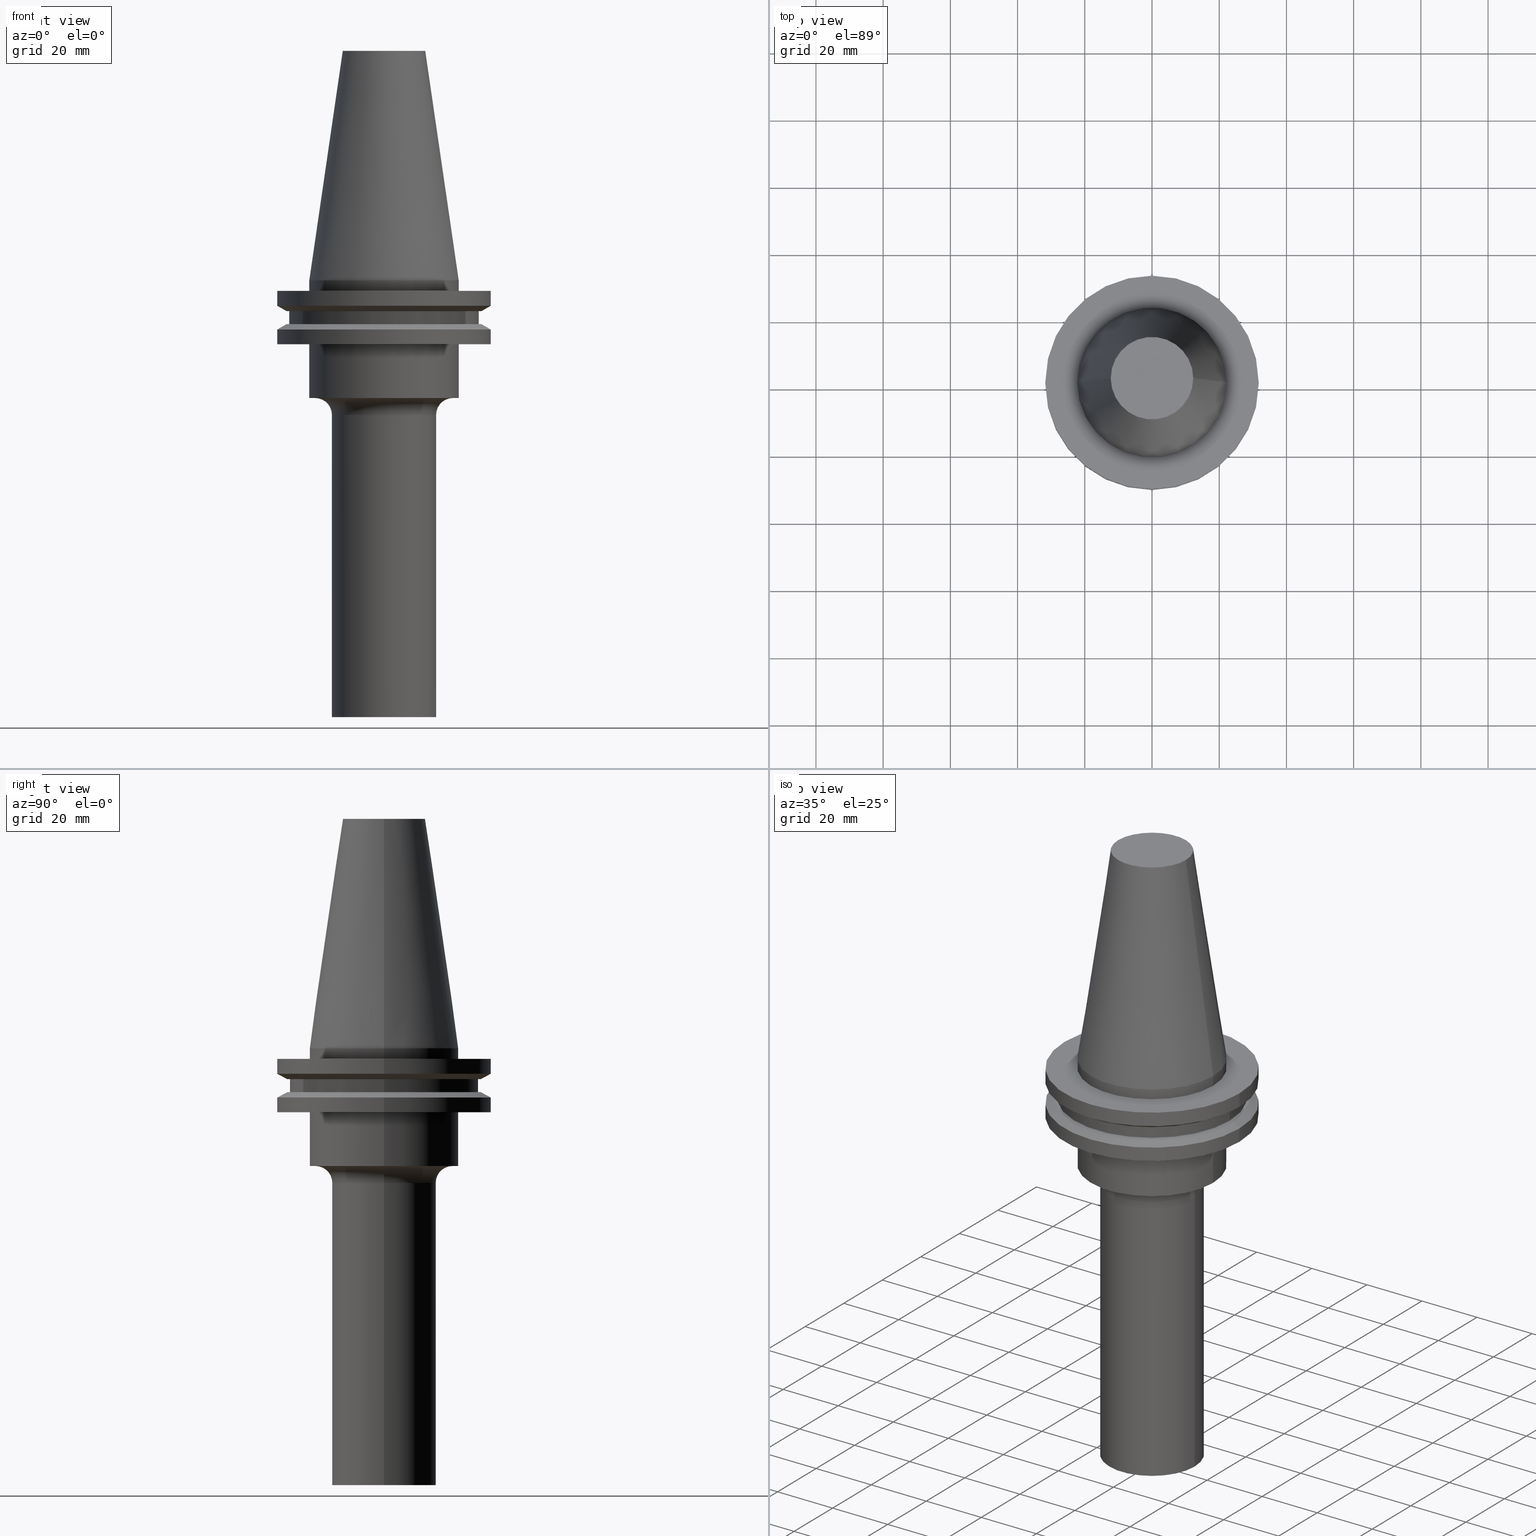
[diagram: canonical four-view strip — front | top / right | iso, engineering-drawing reading convention]
A machine part, canonical four-view strip (front | top / right | iso — engineering-drawing reading convention). The complete STEP part file that produces these views, byte-faithful:
ISO-10303-21;
HEADER;
FILE_DESCRIPTION (( 'STEP AP203' ),
    '1' );
FILE_NAME ('11_326_433.stp',
    '2022-03-07T22:03:55',
    ( '' ),
    ( '' ),
    'SwSTEP 2.0',
    'SolidWorks 2021',
    '' );
FILE_SCHEMA (( 'CONFIG_CONTROL_DESIGN' ));
ENDSEC;

DATA;
#1 = LINE ( 'NONE', #494, #178 ) ;
#2 = VERTEX_POINT ( 'NONE', #304 ) ;
#3 = EDGE_CURVE ( 'NONE', #755, #384, #55, .T. ) ;
#4 = DIRECTION ( 'NONE',  ( 1.000000000000000000, 0.000000000000000000, 0.000000000000000000 ) ) ;
#5 = APPROVAL_STATUS ( 'not_yet_approved' ) ;
#6 = CIRCLE ( 'NONE', #303, 15.50000000000000000 ) ;
#7 = EDGE_CURVE ( 'NONE', #359, #460, #430, .T. ) ;
#8 = ADVANCED_FACE ( 'NONE', ( #312 ), #9, .T. ) ;
#9 = CYLINDRICAL_SURFACE ( 'NONE', #247, 31.75000000000000000 ) ;
#10 = ORIENTED_EDGE ( 'NONE', *, *, #46, .F. ) ;
#11 = CARTESIAN_POINT ( 'NONE',  ( 0.000000000000000000, 31.75000000000000000, -3.174999999999993605 ) ) ;
#12 = DIRECTION ( 'NONE',  ( 1.000000000000000000, 0.000000000000000000, 0.000000000000000000 ) ) ;
#13 = DIRECTION ( 'NONE',  ( -0.000000000000000000, -0.000000000000000000, 1.000000000000000000 ) ) ;
#14 = ORIENTED_EDGE ( 'NONE', *, *, #737, .T. ) ;
#15 = DIRECTION ( 'NONE',  ( 1.000000000000000000, 0.000000000000000000, 0.000000000000000000 ) ) ;
#16 = DIRECTION ( 'NONE',  ( 1.000000000000000000, 0.000000000000000000, 0.000000000000000000 ) ) ;
#17 = EDGE_CURVE ( 'NONE', #462, #533, #540, .T. ) ;
#18 = AXIS2_PLACEMENT_3D ( 'NONE', #549, #436, #145 ) ;
#19 = DIRECTION ( 'NONE',  ( 0.8660254037844387076, 1.060575238724906915E-16, -0.4999999999999998890 ) ) ;
#20 = AXIS2_PLACEMENT_3D ( 'NONE', #672, #251, #150 ) ;
#21 = LINE ( 'NONE', #740, #236 ) ;
#22 = LINE ( 'NONE', #265, #345 ) ;
#23 = CYLINDRICAL_SURFACE ( 'NONE', #341, 15.50000000000000000 ) ;
#24 = DIRECTION ( 'NONE',  ( -0.000000000000000000, -0.000000000000000000, 1.000000000000000000 ) ) ;
#25 = DIRECTION ( 'NONE',  ( 0.000000000000000000, 0.000000000000000000, -1.000000000000000000 ) ) ;
#26 = FACE_OUTER_BOUND ( 'NONE', #516, .T. ) ;
#27 = CARTESIAN_POINT ( 'NONE',  ( -31.75000000000000000, 3.888253587292846476E-15, 68.25000000000000000 ) ) ;
#28 = ORIENTED_EDGE ( 'NONE', *, *, #737, .F. ) ;
#29 = CARTESIAN_POINT ( 'NONE',  ( 15.50000000000000000, 0.000000000000000000, 0.000000000000000000 ) ) ;
#30 = FACE_OUTER_BOUND ( 'NONE', #273, .T. ) ;
#31 = FACE_BOUND ( 'NONE', #767, .T. ) ;
#32 = CIRCLE ( 'NONE', #570, 31.75000000000000000 ) ;
#33 = ORIENTED_EDGE ( 'NONE', *, *, #370, .T. ) ;
#34 = FACE_OUTER_BOUND ( 'NONE', #763, .T. ) ;
#35 = EDGE_CURVE ( 'NONE', #529, #124, #750, .T. ) ;
#36 = CIRCLE ( 'NONE', #471, 20.50000000000000000 ) ;
#37 = CARTESIAN_POINT ( 'NONE',  ( 0.000000000000000000, 0.000000000000000000, 0.000000000000000000 ) ) ;
#38 = EDGE_CURVE ( 'NONE', #159, #600, #411, .T. ) ;
#39 = AXIS2_PLACEMENT_3D ( 'NONE', #307, #13, #534 ) ;
#40 = VERTEX_POINT ( 'NONE', #196 ) ;
#41 = PERSON_AND_ORGANIZATION ( #135, #174 ) ;
#42 = DIRECTION ( 'NONE',  ( -1.000000000000000000, 0.000000000000000000, -0.000000000000000000 ) ) ;
#43 = ORIENTED_EDGE ( 'NONE', *, *, #766, .F. ) ;
#44 = VERTEX_POINT ( 'NONE', #66 ) ;
#45 = AXIS2_PLACEMENT_3D ( 'NONE', #337, #277, #700 ) ;
#46 = EDGE_CURVE ( 'NONE', #308, #701, #198, .T. ) ;
#47 = APPROVAL_DATE_TIME ( #580, #169 ) ;
#48 = CLOSED_SHELL ( 'NONE', ( #64, #567, #354, #371, #419, #611, #739, #217, #598, #723, #54, #551, #536, #698, #482, #93, #199, #330, #244, #626, #113, #8, #186, #530, #667, #155, #339 ) ) ;
#49 = ORIENTED_EDGE ( 'NONE', *, *, #348, .F. ) ;
#50 = ORIENTED_EDGE ( 'NONE', *, *, #234, .T. ) ;
#51 = DIRECTION ( 'NONE',  ( -0.000000000000000000, -0.000000000000000000, 1.000000000000000000 ) ) ;
#52 = ORIENTED_EDGE ( 'NONE', *, *, #114, .T. ) ;
#53 = CARTESIAN_POINT ( 'NONE',  ( -22.22500000000000142, 2.721777511104992849E-15, 68.25000000000000000 ) ) ;
#54 = ADVANCED_FACE ( 'NONE', ( #85 ), #772, .T. ) ;
#55 = CIRCLE ( 'NONE', #584, 31.75000000000000000 ) ;
#56 = ORIENTED_EDGE ( 'NONE', *, *, #295, .T. ) ;
#57 = EDGE_CURVE ( 'NONE', #583, #170, #164, .T. ) ;
#58 = CARTESIAN_POINT ( 'NONE',  ( 0.000000000000000000, 0.000000000000000000, -19.04999999999999716 ) ) ;
#59 = CIRCLE ( 'NONE', #433, 22.22500000000000142 ) ;
#60 = EDGE_LOOP ( 'NONE', ( #496, #434, #121, #10 ) ) ;
#61 = ADVANCED_BREP_SHAPE_REPRESENTATION ( '11_326_433', ( #406, #719 ), #481 ) ;
#62 = APPROVAL_DATE_TIME ( #69, #87 ) ;
#63 = EDGE_LOOP ( 'NONE', ( #405, #353, #543, #535 ) ) ;
#64 = ADVANCED_FACE ( 'NONE', ( #669 ), #302, .F. ) ;
#65 = AXIS2_PLACEMENT_3D ( 'NONE', #340, #622, #392 ) ;
#66 = CARTESIAN_POINT ( 'NONE',  ( 31.74999999999999289, 0.000000000000000000, -19.04999999999999716 ) ) ;
#67 = AXIS2_PLACEMENT_3D ( 'NONE', #203, #431, #248 ) ;
#68 = CIRCLE ( 'NONE', #495, 31.74999999999999289 ) ;
#69 = DATE_AND_TIME ( #602, #228 ) ;
#70 = DIRECTION ( 'NONE',  ( -0.000000000000000000, -0.000000000000000000, 1.000000000000000000 ) ) ;
#71 = FACE_OUTER_BOUND ( 'NONE', #644, .T. ) ;
#72 = DIRECTION ( 'NONE',  ( 1.000000000000000000, 0.000000000000000000, 0.000000000000000000 ) ) ;
#73 =( NAMED_UNIT ( * ) SI_UNIT ( $, .STERADIAN. ) SOLID_ANGLE_UNIT ( ) );
#74 = DIRECTION ( 'NONE',  ( 1.000000000000000000, 0.000000000000000000, 0.000000000000000000 ) ) ;
#75 = CC_DESIGN_PERSON_AND_ORGANIZATION_ASSIGNMENT ( #311, #368, ( #635 ) ) ;
#76 = DIRECTION ( 'NONE',  ( 1.000000000000000000, 0.000000000000000000, 0.000000000000000000 ) ) ;
#77 = EDGE_LOOP ( 'NONE', ( #224, #655, #50, #222 ) ) ;
#78 = DIRECTION ( 'NONE',  ( -0.000000000000000000, -0.000000000000000000, 1.000000000000000000 ) ) ;
#79 = PLANE ( 'NONE',  #581 ) ;
#80 = DIRECTION ( 'NONE',  ( -1.000000000000000000, 1.224646799147352714E-16, 0.000000000000000000 ) ) ;
#81 = DIRECTION ( 'NONE',  ( 1.000000000000000000, 0.000000000000000000, 0.000000000000000000 ) ) ;
#82 = CONICAL_SURFACE ( 'NONE', #465, 22.22500000000000142, 0.1448138465474119174 ) ;
#83 = ORIENTED_EDGE ( 'NONE', *, *, #510, .T. ) ;
#84 = DIRECTION ( 'NONE',  ( -0.1443082272672999711, 0.000000000000000000, -0.9895327864921755756 ) ) ;
#85 = FACE_OUTER_BOUND ( 'NONE', #149, .T. ) ;
#86 = DIRECTION ( 'NONE',  ( -0.000000000000000000, -0.000000000000000000, 1.000000000000000000 ) ) ;
#87 = APPROVAL ( #5, 'UNSPECIFIED' ) ;
#88 = EDGE_CURVE ( 'NONE', #417, #343, #595, .T. ) ;
#89 = LINE ( 'NONE', #442, #200 ) ;
#90 = DIRECTION ( 'NONE',  ( -0.000000000000000000, -0.000000000000000000, 1.000000000000000000 ) ) ;
#91 = CYLINDRICAL_SURFACE ( 'NONE', #45, 28.17999999999999972 ) ;
#92 = ORIENTED_EDGE ( 'NONE', *, *, #425, .F. ) ;
#93 = ADVANCED_FACE ( 'NONE', ( #722 ), #127, .T. ) ;
#94 = CARTESIAN_POINT ( 'NONE',  ( 0.000000000000000000, 0.000000000000000000, -35.04999999999999716 ) ) ;
#95 = EDGE_CURVE ( 'NONE', #410, #552, #470, .T. ) ;
#96 = LINE ( 'NONE', #439, #663 ) ;
#97 = EDGE_LOOP ( 'NONE', ( #83, #748 ) ) ;
#98 = APPLICATION_PROTOCOL_DEFINITION ( 'international standard', 'config_control_design', 1994, #661 ) ;
#99 = CIRCLE ( 'NONE', #585, 28.17999999999999972 ) ;
#100 = CARTESIAN_POINT ( 'NONE',  ( 0.000000000000000000, 0.000000000000000000, -19.04999999999999716 ) ) ;
#101 = AXIS2_PLACEMENT_3D ( 'NONE', #317, #185, #260 ) ;
#102 = ORIENTED_EDGE ( 'NONE', *, *, #682, .F. ) ;
#103 = FACE_OUTER_BOUND ( 'NONE', #773, .T. ) ;
#104 = ORIENTED_EDGE ( 'NONE', *, *, #181, .F. ) ;
#105 = EDGE_CURVE ( 'NONE', #460, #359, #702, .T. ) ;
#106 = APPROVAL_STATUS ( 'not_yet_approved' ) ;
#107 = ORIENTED_EDGE ( 'NONE', *, *, #425, .T. ) ;
#108 = AXIS2_PLACEMENT_3D ( 'NONE', #275, #332, #220 ) ;
#109 = VERTEX_POINT ( 'NONE', #545 ) ;
#110 = CARTESIAN_POINT ( 'NONE',  ( 22.22500000000000142, 2.721777511104992849E-15, 0.000000000000000000 ) ) ;
#111 = ORIENTED_EDGE ( 'NONE', *, *, #596, .F. ) ;
#112 = CARTESIAN_POINT ( 'NONE',  ( 22.22500000000000142, 0.000000000000000000, -3.174999999999997158 ) ) ;
#113 = ADVANCED_FACE ( 'NONE', ( #556 ), #313, .T. ) ;
#114 = EDGE_CURVE ( 'NONE', #755, #692, #22, .T. ) ;
#115 = ORIENTED_EDGE ( 'NONE', *, *, #527, .T. ) ;
#116 = DIRECTION ( 'NONE',  ( 1.000000000000000000, 0.000000000000000000, 0.000000000000000000 ) ) ;
#117 = EDGE_LOOP ( 'NONE', ( #293, #184, #466, #710 ) ) ;
#118 = VECTOR ( 'NONE', #24, 1000.000000000000000 ) ;
#119 = DIRECTION ( 'NONE',  ( -0.000000000000000000, -0.000000000000000000, 1.000000000000000000 ) ) ;
#120 = SECURITY_CLASSIFICATION_LEVEL ( 'unclassified' ) ;
#121 = ORIENTED_EDGE ( 'NONE', *, *, #348, .T. ) ;
#122 = EDGE_CURVE ( 'NONE', #758, #2, #151, .T. ) ;
#123 = CARTESIAN_POINT ( 'NONE',  ( 0.000000000000000000, 0.000000000000000000, -9.205000000000005400 ) ) ;
#124 = VERTEX_POINT ( 'NONE', #486 ) ;
#125 = VECTOR ( 'NONE', #617, 1000.000000000000000 ) ;
#126 = CIRCLE ( 'NONE', #65, 12.27178102086201150 ) ;
#127 = CYLINDRICAL_SURFACE ( 'NONE', #541, 31.75000000000000000 ) ;
#128 = AXIS2_PLACEMENT_3D ( 'NONE', #435, #156, #547 ) ;
#129 = FACE_OUTER_BOUND ( 'NONE', #142, .T. ) ;
#130 = AXIS2_PLACEMENT_3D ( 'NONE', #183, #531, #358 ) ;
#131 =( NAMED_UNIT ( * ) PLANE_ANGLE_UNIT ( ) SI_UNIT ( $, .RADIAN. ) );
#132 = DIRECTION ( 'NONE',  ( -0.000000000000000000, -0.000000000000000000, 1.000000000000000000 ) ) ;
#133 = FACE_OUTER_BOUND ( 'NONE', #519, .T. ) ;
#134 = VERTEX_POINT ( 'NONE', #623 ) ;
#135 = PERSON ( 'UNSPECIFIED', 'UNSPECIFIED', 'UNSPECIFIED', ('UNSPECIFIED'), ('UNSPECIFIED'), ('UNSPECIFIED') ) ;
#136 = CARTESIAN_POINT ( 'NONE',  ( 0.000000000000000000, 0.000000000000000000, -14.65472339340266572 ) ) ;
#137 = APPROVAL ( #106, 'UNSPECIFIED' ) ;
#138 = DIRECTION ( 'NONE',  ( -0.000000000000000000, -0.000000000000000000, 1.000000000000000000 ) ) ;
#139 = EDGE_CURVE ( 'NONE', #701, #124, #6, .T. ) ;
#140 = DIRECTION ( 'NONE',  ( -0.000000000000000000, -0.000000000000000000, 1.000000000000000000 ) ) ;
#141 = FACE_OUTER_BOUND ( 'NONE', #177, .T. ) ;
#142 = EDGE_LOOP ( 'NONE', ( #736, #279, #227, #390 ) ) ;
#143 = DIRECTION ( 'NONE',  ( -0.000000000000000000, -0.000000000000000000, 1.000000000000000000 ) ) ;
#144 = CARTESIAN_POINT ( 'NONE',  ( 0.000000000000000000, 0.000000000000000000, -9.205000000000005400 ) ) ;
#145 = DIRECTION ( 'NONE',  ( 1.000000000000000000, 0.000000000000000000, 0.000000000000000000 ) ) ;
#146 = EDGE_CURVE ( 'NONE', #308, #529, #752, .T. ) ;
#147 = FACE_BOUND ( 'NONE', #97, .T. ) ;
#148 = AXIS2_PLACEMENT_3D ( 'NONE', #144, #90, #568 ) ;
#149 = EDGE_LOOP ( 'NONE', ( #310, #367, #639, #704 ) ) ;
#150 = DIRECTION ( 'NONE',  ( 1.000000000000000000, 0.000000000000000000, 0.000000000000000000 ) ) ;
#151 = CIRCLE ( 'NONE', #754, 28.97919780457008088 ) ;
#152 = CARTESIAN_POINT ( 'NONE',  ( 0.000000000000000000, 0.000000000000000000, -14.65472339340266572 ) ) ;
#153 = DIRECTION ( 'NONE',  ( 1.000000000000000000, 0.000000000000000000, 0.000000000000000000 ) ) ;
#154 = ORIENTED_EDGE ( 'NONE', *, *, #422, .T. ) ;
#155 = ADVANCED_FACE ( 'NONE', ( #26 ), #271, .T. ) ;
#156 = DIRECTION ( 'NONE',  ( -0.000000000000000000, -0.000000000000000000, 1.000000000000000000 ) ) ;
#157 = DIRECTION ( 'NONE',  ( -1.000000000000000000, 0.000000000000000000, 0.000000000000000000 ) ) ;
#158 = FACE_OUTER_BOUND ( 'NONE', #402, .T. ) ;
#159 = VERTEX_POINT ( 'NONE', #616 ) ;
#160 = CARTESIAN_POINT ( 'NONE',  ( 0.000000000000000000, 0.000000000000000000, 0.000000000000000000 ) ) ;
#161 = CARTESIAN_POINT ( 'NONE',  ( -22.22500000000000142, 2.721777511104992849E-15, -19.04999999999999716 ) ) ;
#162 = ORIENTED_EDGE ( 'NONE', *, *, #7, .T. ) ;
#163 = AXIS2_PLACEMENT_3D ( 'NONE', #213, #207, #270 ) ;
#164 = CIRCLE ( 'NONE', #344, 22.22500000000000142 ) ;
#165 = DIRECTION ( 'NONE',  ( 1.000000000000000000, 0.000000000000000000, 0.000000000000000000 ) ) ;
#166 = EDGE_CURVE ( 'NONE', #343, #417, #99, .T. ) ;
#167 = CARTESIAN_POINT ( 'NONE',  ( 28.97919780457007732, 0.000000000000000000, -9.205000000000005400 ) ) ;
#168 = ORIENTED_EDGE ( 'NONE', *, *, #475, .F. ) ;
#169 = APPROVAL ( #765, 'UNSPECIFIED' ) ;
#170 = VERTEX_POINT ( 'NONE', #206 ) ;
#171 = DIRECTION ( 'NONE',  ( 0.000000000000000000, 0.000000000000000000, 1.000000000000000000 ) ) ;
#172 = ORIENTED_EDGE ( 'NONE', *, *, #517, .T. ) ;
#173 = AXIS2_PLACEMENT_3D ( 'NONE', #681, #284, #382 ) ;
#174 = ORGANIZATION ( 'UNSPECIFIED', 'UNSPECIFIED', '' ) ;
#175 = PERSON_AND_ORGANIZATION_ROLE ( 'creator' ) ;
#176 = AXIS2_PLACEMENT_3D ( 'NONE', #333, #250, #16 ) ;
#177 = EDGE_LOOP ( 'NONE', ( #559, #351, #205, #514 ) ) ;
#178 = VECTOR ( 'NONE', #614, 1000.000000000000000 ) ;
#179 = EDGE_CURVE ( 'NONE', #2, #394, #89, .T. ) ;
#180 = CARTESIAN_POINT ( 'NONE',  ( 0.000000000000000000, 0.000000000000000000, -3.174999999999997158 ) ) ;
#181 = EDGE_CURVE ( 'NONE', #134, #701, #201, .T. ) ;
#182 = EDGE_LOOP ( 'NONE', ( #695, #538, #242, #606 ) ) ;
#183 = CARTESIAN_POINT ( 'NONE',  ( 0.000000000000000000, 0.000000000000000000, -9.205000000000005400 ) ) ;
#184 = ORIENTED_EDGE ( 'NONE', *, *, #202, .T. ) ;
#185 = DIRECTION ( 'NONE',  ( -0.000000000000000000, -0.000000000000000000, 1.000000000000000000 ) ) ;
#186 = ADVANCED_FACE ( 'NONE', ( #212, #665 ), #738, .F. ) ;
#187 = EDGE_LOOP ( 'NONE', ( #729, #329, #634, #511 ) ) ;
#188 = VECTOR ( 'NONE', #143, 1000.000000000000000 ) ;
#189 = DATE_AND_TIME ( #659, #709 ) ;
#190 = DIRECTION ( 'NONE',  ( 1.000000000000000000, 0.000000000000000000, 0.000000000000000000 ) ) ;
#191 = DIRECTION ( 'NONE',  ( 1.000000000000000000, 0.000000000000000000, 0.000000000000000000 ) ) ;
#192 = EDGE_CURVE ( 'NONE', #44, #394, #379, .T. ) ;
#193 = CARTESIAN_POINT ( 'NONE',  ( -15.50000000000000000, 1.898202538678397557E-15, -130.0000000000000000 ) ) ;
#194 = CIRCLE ( 'NONE', #464, 12.27178102086201150 ) ;
#195 = PRODUCT_DEFINITION_FORMATION_WITH_SPECIFIED_SOURCE ( 'ANY', '', #705, .NOT_KNOWN. ) ;
#196 = CARTESIAN_POINT ( 'NONE',  ( 12.27178102086201150, 2.112318622904291439E-15, 68.25000000000000000 ) ) ;
#197 = LINE ( 'NONE', #53, #281 ) ;
#198 = CIRCLE ( 'NONE', #67, 4.999999999999997335 ) ;
#199 = ADVANCED_FACE ( 'NONE', ( #219 ), #649, .T. ) ;
#200 = VECTOR ( 'NONE', #19, 1000.000000000000000 ) ;
#201 = LINE ( 'NONE', #29, #413 ) ;
#202 = EDGE_CURVE ( 'NONE', #109, #44, #68, .T. ) ;
#203 = CARTESIAN_POINT ( 'NONE',  ( 20.50000000000000000, 0.000000000000000000, -40.04999999999999716 ) ) ;
#204 = CYLINDRICAL_SURFACE ( 'NONE', #305, 31.75000000000000000 ) ;
#205 = ORIENTED_EDGE ( 'NONE', *, *, #510, .F. ) ;
#206 = CARTESIAN_POINT ( 'NONE',  ( 22.22500000000000142, 0.000000000000000000, -19.04999999999999716 ) ) ;
#207 = DIRECTION ( 'NONE',  ( -0.000000000000000000, -0.000000000000000000, 1.000000000000000000 ) ) ;
#208 = DIRECTION ( 'NONE',  ( 0.000000000000000000, 0.000000000000000000, -1.000000000000000000 ) ) ;
#209 = CARTESIAN_POINT ( 'NONE',  ( 0.000000000000000000, 31.74999999999999289, -19.04999999999999716 ) ) ;
#210 = UNCERTAINTY_MEASURE_WITH_UNIT (LENGTH_MEASURE( 1.000000000000000082E-05 ), #571, 'distance_accuracy_value', 'NONE');
#211 = ORIENTED_EDGE ( 'NONE', *, *, #269, .T. ) ;
#212 = FACE_BOUND ( 'NONE', #664, .T. ) ;
#213 = CARTESIAN_POINT ( 'NONE',  ( 0.000000000000000000, 0.000000000000000000, -130.0000000000000000 ) ) ;
#214 = DIRECTION ( 'NONE',  ( 1.000000000000000000, 0.000000000000000000, 0.000000000000000000 ) ) ;
#215 = CARTESIAN_POINT ( 'NONE',  ( 0.000000000000000000, 12.27178102086201150, 68.25000000000000000 ) ) ;
#216 = LOCAL_TIME ( 16, 3, 55.00000000000000000, #768 ) ;
#217 = ADVANCED_FACE ( 'NONE', ( #129 ), #438, .T. ) ;
#218 = EDGE_LOOP ( 'NONE', ( #357, #688, #52, #653 ) ) ;
#219 = FACE_OUTER_BOUND ( 'NONE', #409, .T. ) ;
#220 = DIRECTION ( 'NONE',  ( 1.000000000000000000, 0.000000000000000000, 0.000000000000000000 ) ) ;
#221 = CARTESIAN_POINT ( 'NONE',  ( -22.22500000000000142, 2.721777511104992849E-15, -3.174999999999997158 ) ) ;
#222 = ORIENTED_EDGE ( 'NONE', *, *, #707, .F. ) ;
#223 = CARTESIAN_POINT ( 'NONE',  ( 0.000000000000000000, 0.000000000000000000, -13.05499999999999794 ) ) ;
#224 = ORIENTED_EDGE ( 'NONE', *, *, #399, .F. ) ;
#225 = PERSON_AND_ORGANIZATION ( #135, #174 ) ;
#226 = CARTESIAN_POINT ( 'NONE',  ( -15.50000000000000000, 1.898202538678397557E-15, 0.000000000000000000 ) ) ;
#227 = ORIENTED_EDGE ( 'NONE', *, *, #315, .F. ) ;
#228 = LOCAL_TIME ( 16, 3, 55.00000000000000000, #771 ) ;
#229 = AXIS2_PLACEMENT_3D ( 'NONE', #322, #651, #550 ) ;
#230 = EDGE_LOOP ( 'NONE', ( #92, #453, #615, #111 ) ) ;
#231 = ORIENTED_EDGE ( 'NONE', *, *, #202, .F. ) ;
#232 = EDGE_CURVE ( 'NONE', #625, #394, #280, .T. ) ;
#233 = EDGE_LOOP ( 'NONE', ( #420, #676, #505, #102 ) ) ;
#234 = EDGE_CURVE ( 'NONE', #462, #159, #485, .T. ) ;
#235 = DIRECTION ( 'NONE',  ( -0.000000000000000000, -0.000000000000000000, 1.000000000000000000 ) ) ;
#236 = VECTOR ( 'NONE', #686, 1000.000000000000000 ) ;
#237 = PERSON_AND_ORGANIZATION_ROLE ( 'design_supplier' ) ;
#238 = AXIS2_PLACEMENT_3D ( 'NONE', #501, #319, #15 ) ;
#239 = EDGE_LOOP ( 'NONE', ( #115, #645 ) ) ;
#240 = CONICAL_SURFACE ( 'NONE', #130, 28.97919780457007732, 1.047197551196598297 ) ;
#241 = CARTESIAN_POINT ( 'NONE',  ( 0.000000000000000000, 0.000000000000000000, -3.174999999999997158 ) ) ;
#242 = ORIENTED_EDGE ( 'NONE', *, *, #46, .T. ) ;
#243 = DIRECTION ( 'NONE',  ( -0.000000000000000000, -0.000000000000000000, 1.000000000000000000 ) ) ;
#244 = ADVANCED_FACE ( 'NONE', ( #726 ), #375, .T. ) ;
#245 = VERTEX_POINT ( 'NONE', #621 ) ;
#246 = APPROVAL_PERSON_ORGANIZATION ( #407, #169, #461 ) ;
#247 = AXIS2_PLACEMENT_3D ( 'NONE', #741, #140, #724 ) ;
#248 = DIRECTION ( 'NONE',  ( 0.000000000000000000, 0.000000000000000000, -1.000000000000000000 ) ) ;
#249 = VECTOR ( 'NONE', #631, 1000.000000000000000 ) ;
#250 = DIRECTION ( 'NONE',  ( -0.000000000000000000, -0.000000000000000000, 1.000000000000000000 ) ) ;
#251 = DIRECTION ( 'NONE',  ( -0.000000000000000000, -0.000000000000000000, 1.000000000000000000 ) ) ;
#252 = DIRECTION ( 'NONE',  ( 1.000000000000000000, 0.000000000000000000, 0.000000000000000000 ) ) ;
#253 = DIRECTION ( 'NONE',  ( 1.000000000000000000, 0.000000000000000000, 0.000000000000000000 ) ) ;
#254 = EDGE_CURVE ( 'NONE', #777, #600, #391, .T. ) ;
#255 = ORIENTED_EDGE ( 'NONE', *, *, #451, .F. ) ;
#256 = CARTESIAN_POINT ( 'NONE',  ( 0.000000000000000000, 0.000000000000000000, 68.25000000000000000 ) ) ;
#257 = AXIS2_PLACEMENT_3D ( 'NONE', #401, #500, #675 ) ;
#258 = CARTESIAN_POINT ( 'NONE',  ( -28.97919780457008088, 0.000000000000000000, -13.05499999999999794 ) ) ;
#259 = DIRECTION ( 'NONE',  ( 1.000000000000000000, 0.000000000000000000, 0.000000000000000000 ) ) ;
#260 = DIRECTION ( 'NONE',  ( 1.000000000000000000, 0.000000000000000000, 0.000000000000000000 ) ) ;
#261 = ORIENTED_EDGE ( 'NONE', *, *, #399, .T. ) ;
#262 = AXIS2_PLACEMENT_3D ( 'NONE', #746, #78, #689 ) ;
#263 = DIRECTION ( 'NONE',  ( -1.000000000000000000, 0.000000000000000000, 0.000000000000000000 ) ) ;
#264 = CARTESIAN_POINT ( 'NONE',  ( 15.50000000000000000, 0.000000000000000000, -40.04999999999999005 ) ) ;
#265 = CARTESIAN_POINT ( 'NONE',  ( 31.75000000000000000, 0.000000000000000000, 68.25000000000000000 ) ) ;
#266 = CARTESIAN_POINT ( 'NONE',  ( 0.000000000000000000, 0.000000000000000000, 68.25000000000000000 ) ) ;
#267 = ORIENTED_EDGE ( 'NONE', *, *, #588, .F. ) ;
#268 = CARTESIAN_POINT ( 'NONE',  ( 20.50000000000000000, 0.000000000000000000, -35.04999999999999716 ) ) ;
#269 = EDGE_CURVE ( 'NONE', #134, #285, #764, .T. ) ;
#270 = DIRECTION ( 'NONE',  ( 1.000000000000000000, 0.000000000000000000, 0.000000000000000000 ) ) ;
#271 = CYLINDRICAL_SURFACE ( 'NONE', #262, 15.50000000000000000 ) ;
#272 = DIRECTION ( 'NONE',  ( 1.000000000000000000, 0.000000000000000000, 0.000000000000000000 ) ) ;
#273 = EDGE_LOOP ( 'NONE', ( #569, #162, #56, #456 ) ) ;
#274 = DIRECTION ( 'NONE',  ( -0.000000000000000000, -0.000000000000000000, 1.000000000000000000 ) ) ;
#275 = CARTESIAN_POINT ( 'NONE',  ( 0.000000000000000000, 0.000000000000000000, 68.25000000000000000 ) ) ;
#276 = CIRCLE ( 'NONE', #148, 28.97919780457007732 ) ;
#277 = DIRECTION ( 'NONE',  ( -0.000000000000000000, -0.000000000000000000, 1.000000000000000000 ) ) ;
#278 = APPROVAL_PERSON_ORGANIZATION ( #454, #137, #521 ) ;
#279 = ORIENTED_EDGE ( 'NONE', *, *, #383, .T. ) ;
#280 = CIRCLE ( 'NONE', #20, 31.75000000000000000 ) ;
#281 = VECTOR ( 'NONE', #715, 1000.000000000000000 ) ;
#282 = CARTESIAN_POINT ( 'NONE',  ( -12.27178102086201150, 0.000000000000000000, 68.25000000000000000 ) ) ;
#283 = EDGE_CURVE ( 'NONE', #529, #308, #36, .T. ) ;
#284 = DIRECTION ( 'NONE',  ( -0.000000000000000000, -0.000000000000000000, 1.000000000000000000 ) ) ;
#285 = VERTEX_POINT ( 'NONE', #193 ) ;
#286 = DATE_AND_TIME ( #458, #554 ) ;
#287 = CARTESIAN_POINT ( 'NONE',  ( -31.75000000000000000, 3.888253587292846476E-15, -3.174999999999997158 ) ) ;
#288 = PRODUCT_DEFINITION ( 'UNKNOWN', '', #195, #564 ) ;
#289 = ORIENTED_EDGE ( 'NONE', *, *, #95, .T. ) ;
#290 = COORDINATED_UNIVERSAL_TIME_OFFSET ( 6, 0, .BEHIND. ) ;
#291 = ORIENTED_EDGE ( 'NONE', *, *, #95, .F. ) ;
#292 = AXIS2_PLACEMENT_3D ( 'NONE', #594, #546, #253 ) ;
#293 = ORIENTED_EDGE ( 'NONE', *, *, #383, .F. ) ;
#294 = APPROVAL_DATE_TIME ( #576, #137 ) ;
#295 = EDGE_CURVE ( 'NONE', #460, #170, #610, .T. ) ;
#296 = ORIENTED_EDGE ( 'NONE', *, *, #254, .F. ) ;
#297 = LINE ( 'NONE', #712, #641 ) ;
#298 = ORIENTED_EDGE ( 'NONE', *, *, #679, .F. ) ;
#299 = AXIS2_PLACEMENT_3D ( 'NONE', #266, #342, #509 ) ;
#300 = FACE_BOUND ( 'NONE', #761, .T. ) ;
#301 = APPROVAL_PERSON_ORGANIZATION ( #713, #87, #599 ) ;
#302 = TOROIDAL_SURFACE ( 'NONE', #730, 20.50000000000000000, 4.999999999999999112 ) ;
#303 = AXIS2_PLACEMENT_3D ( 'NONE', #369, #727, #74 ) ;
#304 = CARTESIAN_POINT ( 'NONE',  ( 28.97919780457008088, 3.718590885307660666E-15, -13.05499999999999794 ) ) ;
#305 = AXIS2_PLACEMENT_3D ( 'NONE', #474, #51, #609 ) ;
#306 = CC_DESIGN_DATE_AND_TIME_ASSIGNMENT ( #189, #366, ( #635 ) ) ;
#307 = CARTESIAN_POINT ( 'NONE',  ( 0.000000000000000000, 0.000000000000000000, 68.25000000000000000 ) ) ;
#308 = VERTEX_POINT ( 'NONE', #268 ) ;
#309 = CC_DESIGN_DATE_AND_TIME_ASSIGNMENT ( #286, #703, ( #288 ) ) ;
#310 = ORIENTED_EDGE ( 'NONE', *, *, #422, .F. ) ;
#311 = PERSON_AND_ORGANIZATION ( #135, #174 ) ;
#312 = FACE_OUTER_BOUND ( 'NONE', #218, .T. ) ;
#313 = CONICAL_SURFACE ( 'NONE', #721, 28.97919780457007732, 1.047197551196598297 ) ;
#314 = ORIENTED_EDGE ( 'NONE', *, *, #114, .F. ) ;
#315 = EDGE_CURVE ( 'NONE', #394, #625, #574, .T. ) ;
#316 = DIRECTION ( 'NONE',  ( 1.000000000000000000, 0.000000000000000000, 0.000000000000000000 ) ) ;
#317 = CARTESIAN_POINT ( 'NONE',  ( 0.000000000000000000, 0.000000000000000000, -3.174999999999997158 ) ) ;
#318 = ORIENTED_EDGE ( 'NONE', *, *, #459, .F. ) ;
#319 = DIRECTION ( 'NONE',  ( -0.000000000000000000, -0.000000000000000000, 1.000000000000000000 ) ) ;
#320 = PLANE ( 'NONE',  #480 ) ;
#321 = DIRECTION ( 'NONE',  ( -0.000000000000000000, -0.000000000000000000, 1.000000000000000000 ) ) ;
#322 = CARTESIAN_POINT ( 'NONE',  ( 0.000000000000000000, 28.17999999999999972, -13.05499999999999794 ) ) ;
#323 = VERTEX_POINT ( 'NONE', #731 ) ;
#324 = DIRECTION ( 'NONE',  ( 1.000000000000000000, 0.000000000000000000, 0.000000000000000000 ) ) ;
#325 = DIRECTION ( 'NONE',  ( 1.000000000000000000, 0.000000000000000000, 0.000000000000000000 ) ) ;
#326 = AXIS2_PLACEMENT_3D ( 'NONE', #376, #678, #325 ) ;
#327 = DIRECTION ( 'NONE',  ( -0.000000000000000000, -0.000000000000000000, 1.000000000000000000 ) ) ;
#328 = CARTESIAN_POINT ( 'NONE',  ( 0.000000000000000000, 0.000000000000000000, 68.25000000000000000 ) ) ;
#329 = ORIENTED_EDGE ( 'NONE', *, *, #179, .T. ) ;
#330 = ADVANCED_FACE ( 'NONE', ( #300, #432 ), #415, .F. ) ;
#331 = DIRECTION ( 'NONE',  ( -0.000000000000000000, -0.000000000000000000, 1.000000000000000000 ) ) ;
#332 = DIRECTION ( 'NONE',  ( -0.000000000000000000, -0.000000000000000000, 1.000000000000000000 ) ) ;
#333 = CARTESIAN_POINT ( 'NONE',  ( 0.000000000000000000, 0.000000000000000000, -35.04999999999999716 ) ) ;
#334 = CARTESIAN_POINT ( 'NONE',  ( 0.000000000000000000, 22.22500000000000142, -35.04999999999999716 ) ) ;
#335 = CARTESIAN_POINT ( 'NONE',  ( 0.000000000000000000, 0.000000000000000000, -19.04999999999999716 ) ) ;
#336 = CARTESIAN_POINT ( 'NONE',  ( 31.75000000000000000, 0.000000000000000000, -3.174999999999997158 ) ) ;
#337 = CARTESIAN_POINT ( 'NONE',  ( 0.000000000000000000, 0.000000000000000000, 68.25000000000000000 ) ) ;
#338 = ORIENTED_EDGE ( 'NONE', *, *, #596, .T. ) ;
#339 = ADVANCED_FACE ( 'NONE', ( #670 ), #657, .F. ) ;
#340 = CARTESIAN_POINT ( 'NONE',  ( 0.000000000000000000, 0.000000000000000000, 68.25000000000000000 ) ) ;
#341 = AXIS2_PLACEMENT_3D ( 'NONE', #37, #86, #444 ) ;
#342 = DIRECTION ( 'NONE',  ( -0.000000000000000000, -0.000000000000000000, 1.000000000000000000 ) ) ;
#343 = VERTEX_POINT ( 'NONE', #717 ) ;
#344 = AXIS2_PLACEMENT_3D ( 'NONE', #618, #426, #680 ) ;
#345 = VECTOR ( 'NONE', #483, 1000.000000000000000 ) ;
#346 = VECTOR ( 'NONE', #235, 1000.000000000000000 ) ;
#347 = CALENDAR_DATE ( 2022, 7, 3 ) ;
#348 = EDGE_CURVE ( 'NONE', #124, #701, #520, .T. ) ;
#349 = CYLINDRICAL_SURFACE ( 'NONE', #299, 22.22500000000000142 ) ;
#350 = EDGE_CURVE ( 'NONE', #692, #586, #532, .T. ) ;
#351 = ORIENTED_EDGE ( 'NONE', *, *, #648, .T. ) ;
#352 = ORIENTED_EDGE ( 'NONE', *, *, #234, .F. ) ;
#353 = ORIENTED_EDGE ( 'NONE', *, *, #725, .T. ) ;
#354 = ADVANCED_FACE ( 'NONE', ( #378 ), #468, .T. ) ;
#355 = ORIENTED_EDGE ( 'NONE', *, *, #38, .T. ) ;
#356 = DIRECTION ( 'NONE',  ( 0.1443082272672999711, 1.767266086135276757E-17, -0.9895327864921755756 ) ) ;
#357 = ORIENTED_EDGE ( 'NONE', *, *, #508, .F. ) ;
#358 = DIRECTION ( 'NONE',  ( 1.000000000000000000, 0.000000000000000000, 0.000000000000000000 ) ) ;
#359 = VERTEX_POINT ( 'NONE', #365 ) ;
#360 = CARTESIAN_POINT ( 'NONE',  ( 22.22500000000000142, 0.000000000000000000, -35.04999999999999716 ) ) ;
#361 = CONICAL_SURFACE ( 'NONE', #592, 31.75000000000000000, 1.047197551196597853 ) ;
#362 = CC_DESIGN_APPROVAL ( #87, ( #635 ) ) ;
#363 = AXIS2_PLACEMENT_3D ( 'NONE', #256, #566, #447 ) ;
#364 = ORIENTED_EDGE ( 'NONE', *, *, #7, .F. ) ;
#365 = CARTESIAN_POINT ( 'NONE',  ( -22.22500000000000142, 2.721777511104992849E-15, -35.04999999999999716 ) ) ;
#366 = DATE_TIME_ROLE ( 'classification_date' ) ;
#367 = ORIENTED_EDGE ( 'NONE', *, *, #527, .F. ) ;
#368 = PERSON_AND_ORGANIZATION_ROLE ( 'classification_officer' ) ;
#369 = CARTESIAN_POINT ( 'NONE',  ( 0.000000000000000000, 0.000000000000000000, -40.04999999999999005 ) ) ;
#370 = EDGE_CURVE ( 'NONE', #586, #692, #607, .T. ) ;
#371 = ADVANCED_FACE ( 'NONE', ( #133 ), #204, .T. ) ;
#372 = DIRECTION ( 'NONE',  ( -0.000000000000000000, -0.000000000000000000, 1.000000000000000000 ) ) ;
#373 = AXIS2_PLACEMENT_3D ( 'NONE', #209, #633, #272 ) ;
#374 = ORIENTED_EDGE ( 'NONE', *, *, #181, .T. ) ;
#375 = CYLINDRICAL_SURFACE ( 'NONE', #128, 28.17999999999999972 ) ;
#376 = CARTESIAN_POINT ( 'NONE',  ( 0.000000000000000000, 0.000000000000000000, 0.000000000000000000 ) ) ;
#377 = CARTESIAN_POINT ( 'NONE',  ( 0.000000000000000000, 0.000000000000000000, 0.000000000000000000 ) ) ;
#378 = FACE_OUTER_BOUND ( 'NONE', #565, .T. ) ;
#379 = LINE ( 'NONE', #544, #249 ) ;
#380 = CYLINDRICAL_SURFACE ( 'NONE', #108, 22.22500000000000142 ) ;
#381 = CARTESIAN_POINT ( 'NONE',  ( 0.000000000000000000, 0.000000000000000000, 0.000000000000000000 ) ) ;
#382 = DIRECTION ( 'NONE',  ( 1.000000000000000000, 0.000000000000000000, 0.000000000000000000 ) ) ;
#383 = EDGE_CURVE ( 'NONE', #109, #625, #1, .T. ) ;
#384 = VERTEX_POINT ( 'NONE', #437 ) ;
#385 = DIRECTION ( 'NONE',  ( -0.000000000000000000, -0.000000000000000000, 1.000000000000000000 ) ) ;
#386 = FACE_OUTER_BOUND ( 'NONE', #620, .T. ) ;
#387 = CARTESIAN_POINT ( 'NONE',  ( 0.000000000000000000, 0.000000000000000000, -40.04999999999999716 ) ) ;
#388 = FACE_OUTER_BOUND ( 'NONE', #77, .T. ) ;
#389 = CC_DESIGN_PERSON_AND_ORGANIZATION_ASSIGNMENT ( #412, #237, ( #195 ) ) ;
#390 = ORIENTED_EDGE ( 'NONE', *, *, #192, .F. ) ;
#391 = LINE ( 'NONE', #744, #457 ) ;
#392 = DIRECTION ( 'NONE',  ( 1.000000000000000000, 0.000000000000000000, 0.000000000000000000 ) ) ;
#393 = LINE ( 'NONE', #27, #472 ) ;
#394 = VERTEX_POINT ( 'NONE', #487 ) ;
#395 = CARTESIAN_POINT ( 'NONE',  ( 0.000000000000000000, 0.000000000000000000, -130.0000000000000000 ) ) ;
#396 = DIRECTION ( 'NONE',  ( 1.000000000000000000, 0.000000000000000000, 0.000000000000000000 ) ) ;
#397 = DIRECTION ( 'NONE',  ( 0.000000000000000000, -0.000000000000000000, 1.000000000000000000 ) ) ;
#398 = ORIENTED_EDGE ( 'NONE', *, *, #166, .T. ) ;
#399 = EDGE_CURVE ( 'NONE', #533, #600, #197, .T. ) ;
#400 = AXIS2_PLACEMENT_3D ( 'NONE', #334, #397, #452 ) ;
#401 = CARTESIAN_POINT ( 'NONE',  ( 0.000000000000000000, 0.000000000000000000, -9.205000000000005400 ) ) ;
#402 = EDGE_LOOP ( 'NONE', ( #578, #364 ) ) ;
#403 = AXIS2_PLACEMENT_3D ( 'NONE', #58, #243, #477 ) ;
#404 = DIRECTION ( 'NONE',  ( 0.8660254037844389297, 0.000000000000000000, 0.4999999999999995004 ) ) ;
#405 = ORIENTED_EDGE ( 'NONE', *, *, #588, .T. ) ;
#406 = MANIFOLD_SOLID_BREP ( 'CKB', #48 ) ;
#407 = PERSON_AND_ORGANIZATION ( #135, #174 ) ;
#408 = PRODUCT_DEFINITION_SHAPE ( 'NONE', 'NONE',  #288 ) ;
#409 = EDGE_LOOP ( 'NONE', ( #769, #450, #593, #671 ) ) ;
#410 = VERTEX_POINT ( 'NONE', #421 ) ;
#411 = CIRCLE ( 'NONE', #492, 22.22500000000000142 ) ;
#412 = PERSON_AND_ORGANIZATION ( #135, #174 ) ;
#413 = VECTOR ( 'NONE', #274, 1000.000000000000000 ) ;
#414 = ORIENTED_EDGE ( 'NONE', *, *, #269, .F. ) ;
#415 = PLANE ( 'NONE',  #229 ) ;
#416 = APPLICATION_CONTEXT ( 'configuration controlled 3d designs of mechanical parts and assemblies' ) ;
#417 = VERTEX_POINT ( 'NONE', #656 ) ;
#418 = FACE_OUTER_BOUND ( 'NONE', #63, .T. ) ;
#419 = ADVANCED_FACE ( 'NONE', ( #418 ), #240, .T. ) ;
#420 = ORIENTED_EDGE ( 'NONE', *, *, #725, .F. ) ;
#421 = CARTESIAN_POINT ( 'NONE',  ( 28.17999999999999972, 0.000000000000000000, -9.204999999999991189 ) ) ;
#422 = EDGE_CURVE ( 'NONE', #40, #159, #654, .T. ) ;
#423 = AXIS2_PLACEMENT_3D ( 'NONE', #735, #728, #526 ) ;
#424 = EDGE_LOOP ( 'NONE', ( #630, #33 ) ) ;
#425 = EDGE_CURVE ( 'NONE', #417, #552, #770, .T. ) ;
#426 = DIRECTION ( 'NONE',  ( -0.000000000000000000, -0.000000000000000000, 1.000000000000000000 ) ) ;
#427 = ORIENTED_EDGE ( 'NONE', *, *, #537, .F. ) ;
#428 = DIRECTION ( 'NONE',  ( -0.000000000000000000, -0.000000000000000000, 1.000000000000000000 ) ) ;
#429 = DIRECTION ( 'NONE',  ( -0.8660254037844387076, 0.000000000000000000, -0.4999999999999998890 ) ) ;
#430 = CIRCLE ( 'NONE', #176, 22.22500000000000142 ) ;
#431 = DIRECTION ( 'NONE',  ( 0.000000000000000000, -1.000000000000000000, 0.000000000000000000 ) ) ;
#432 = FACE_OUTER_BOUND ( 'NONE', #650, .T. ) ;
#433 = AXIS2_PLACEMENT_3D ( 'NONE', #180, #775, #116 ) ;
#434 = ORIENTED_EDGE ( 'NONE', *, *, #35, .T. ) ;
#435 = CARTESIAN_POINT ( 'NONE',  ( 0.000000000000000000, 0.000000000000000000, 68.25000000000000000 ) ) ;
#436 = DIRECTION ( 'NONE',  ( -0.000000000000000000, -0.000000000000000000, 1.000000000000000000 ) ) ;
#437 = CARTESIAN_POINT ( 'NONE',  ( -31.75000000000000000, 3.888253587292846476E-15, -7.605276606597335842 ) ) ;
#438 = CYLINDRICAL_SURFACE ( 'NONE', #363, 31.75000000000000000 ) ;
#439 = CARTESIAN_POINT ( 'NONE',  ( -31.75000000000000000, 0.000000000000000000, -14.65472339340266572 ) ) ;
#440 = DIRECTION ( 'NONE',  ( 1.224646799147353207E-16, 1.000000000000000000, 0.000000000000000000 ) ) ;
#441 = DIRECTION ( 'NONE',  ( -0.000000000000000000, -0.000000000000000000, 1.000000000000000000 ) ) ;
#442 = CARTESIAN_POINT ( 'NONE',  ( 31.75000000000000000, 3.888253587292846476E-15, -14.65472339340266572 ) ) ;
#443 = FACE_BOUND ( 'NONE', #658, .T. ) ;
#444 = DIRECTION ( 'NONE',  ( 1.000000000000000000, 0.000000000000000000, 0.000000000000000000 ) ) ;
#445 = ORIENTED_EDGE ( 'NONE', *, *, #17, .F. ) ;
#446 = AXIS2_PLACEMENT_3D ( 'NONE', #136, #685, #263 ) ;
#447 = DIRECTION ( 'NONE',  ( 1.000000000000000000, 0.000000000000000000, 0.000000000000000000 ) ) ;
#448 = CARTESIAN_POINT ( 'NONE',  ( 0.000000000000000000, 0.000000000000000000, 0.000000000000000000 ) ) ;
#449 = DIRECTION ( 'NONE',  ( -0.000000000000000000, -0.000000000000000000, 1.000000000000000000 ) ) ;
#450 = ORIENTED_EDGE ( 'NONE', *, *, #122, .F. ) ;
#451 = EDGE_CURVE ( 'NONE', #343, #410, #297, .T. ) ;
#452 = DIRECTION ( 'NONE',  ( 1.000000000000000000, 0.000000000000000000, 0.000000000000000000 ) ) ;
#453 = ORIENTED_EDGE ( 'NONE', *, *, #88, .T. ) ;
#454 = PERSON_AND_ORGANIZATION ( #135, #174 ) ;
#455 = LINE ( 'NONE', #167, #604 ) ;
#456 = ORIENTED_EDGE ( 'NONE', *, *, #57, .F. ) ;
#457 = VECTOR ( 'NONE', #84, 999.9999999999998863 ) ;
#458 = CALENDAR_DATE ( 2022, 7, 3 ) ;
#459 = EDGE_CURVE ( 'NONE', #533, #462, #59, .T. ) ;
#460 = VERTEX_POINT ( 'NONE', #360 ) ;
#461 = APPROVAL_ROLE ( '' ) ;
#462 = VERTEX_POINT ( 'NONE', #112 ) ;
#463 = CALENDAR_DATE ( 2022, 7, 3 ) ;
#464 = AXIS2_PLACEMENT_3D ( 'NONE', #328, #760, #81 ) ;
#465 = AXIS2_PLACEMENT_3D ( 'NONE', #448, #25, #756 ) ;
#466 = ORIENTED_EDGE ( 'NONE', *, *, #192, .T. ) ;
#467 = CC_DESIGN_SECURITY_CLASSIFICATION ( #635, ( #195 ) ) ;
#468 = CYLINDRICAL_SURFACE ( 'NONE', #39, 22.22500000000000142 ) ;
#469 = AXIS2_PLACEMENT_3D ( 'NONE', #484, #440, #80 ) ;
#470 = CIRCLE ( 'NONE', #558, 28.17999999999999972 ) ;
#471 = AXIS2_PLACEMENT_3D ( 'NONE', #94, #331, #72 ) ;
#472 = VECTOR ( 'NONE', #515, 1000.000000000000000 ) ;
#473 = EDGE_LOOP ( 'NONE', ( #211, #476, #647, #104 ) ) ;
#474 = CARTESIAN_POINT ( 'NONE',  ( 0.000000000000000000, 0.000000000000000000, 68.25000000000000000 ) ) ;
#475 = EDGE_CURVE ( 'NONE', #44, #109, #668, .T. ) ;
#476 = ORIENTED_EDGE ( 'NONE', *, *, #537, .T. ) ;
#477 = DIRECTION ( 'NONE',  ( 1.000000000000000000, 0.000000000000000000, 0.000000000000000000 ) ) ;
#478 = COORDINATED_UNIVERSAL_TIME_OFFSET ( 6, 0, .BEHIND. ) ;
#479 = DIRECTION ( 'NONE',  ( 1.000000000000000000, 0.000000000000000000, 0.000000000000000000 ) ) ;
#480 = AXIS2_PLACEMENT_3D ( 'NONE', #561, #751, #548 ) ;
#481 =( GEOMETRIC_REPRESENTATION_CONTEXT ( 3 ) GLOBAL_UNCERTAINTY_ASSIGNED_CONTEXT ( ( #210 ) ) GLOBAL_UNIT_ASSIGNED_CONTEXT ( ( #571, #131, #73 ) ) REPRESENTATION_CONTEXT ( 'NONE', 'WORKASPACE' ) );
#482 = ADVANCED_FACE ( 'NONE', ( #71, #147 ), #638, .F. ) ;
#483 = DIRECTION ( 'NONE',  ( -0.000000000000000000, -0.000000000000000000, 1.000000000000000000 ) ) ;
#484 = CARTESIAN_POINT ( 'NONE',  ( -20.50000000000000000, 2.510525938252074481E-15, -40.04999999999999716 ) ) ;
#485 = LINE ( 'NONE', #677, #188 ) ;
#486 = CARTESIAN_POINT ( 'NONE',  ( -15.50000000000000000, 1.898202538678397557E-15, -40.04999999999999005 ) ) ;
#487 = CARTESIAN_POINT ( 'NONE',  ( 31.75000000000000000, 0.000000000000000000, -14.65472339340266572 ) ) ;
#488 = ORIENTED_EDGE ( 'NONE', *, *, #38, .F. ) ;
#489 = CIRCLE ( 'NONE', #684, 28.97919780457008088 ) ;
#490 = DIRECTION ( 'NONE',  ( 1.000000000000000000, 0.000000000000000000, 0.000000000000000000 ) ) ;
#491 = CIRCLE ( 'NONE', #163, 15.50000000000000000 ) ;
#492 = AXIS2_PLACEMENT_3D ( 'NONE', #377, #603, #191 ) ;
#493 = CARTESIAN_POINT ( 'NONE',  ( 0.000000000000000000, 0.000000000000000000, 68.25000000000000000 ) ) ;
#494 = CARTESIAN_POINT ( 'NONE',  ( -31.75000000000000000, 3.888253587292846476E-15, 68.25000000000000000 ) ) ;
#495 = AXIS2_PLACEMENT_3D ( 'NONE', #335, #385, #497 ) ;
#496 = ORIENTED_EDGE ( 'NONE', *, *, #283, .F. ) ;
#497 = DIRECTION ( 'NONE',  ( 1.000000000000000000, 0.000000000000000000, 0.000000000000000000 ) ) ;
#498 = LINE ( 'NONE', #673, #125 ) ;
#499 = DIRECTION ( 'NONE',  ( -0.000000000000000000, -0.000000000000000000, 1.000000000000000000 ) ) ;
#500 = DIRECTION ( 'NONE',  ( -0.000000000000000000, -0.000000000000000000, 1.000000000000000000 ) ) ;
#501 = CARTESIAN_POINT ( 'NONE',  ( 0.000000000000000000, 0.000000000000000000, -14.65472339340266572 ) ) ;
#502 = CARTESIAN_POINT ( 'NONE',  ( 31.75000000000000000, 0.000000000000000000, -7.605276606597335842 ) ) ;
#503 = DIRECTION ( 'NONE',  ( -0.000000000000000000, -0.000000000000000000, 1.000000000000000000 ) ) ;
#504 = DIRECTION ( 'NONE',  ( 1.000000000000000000, 0.000000000000000000, 0.000000000000000000 ) ) ;
#505 = ORIENTED_EDGE ( 'NONE', *, *, #612, .T. ) ;
#506 = CARTESIAN_POINT ( 'NONE',  ( 0.000000000000000000, 0.000000000000000000, -13.05499999999999794 ) ) ;
#507 = CARTESIAN_POINT ( 'NONE',  ( 0.000000000000000000, 15.50000000000000000, -130.0000000000000000 ) ) ;
#508 = EDGE_CURVE ( 'NONE', #384, #586, #393, .T. ) ;
#509 = DIRECTION ( 'NONE',  ( 1.000000000000000000, 0.000000000000000000, 0.000000000000000000 ) ) ;
#510 = EDGE_CURVE ( 'NONE', #170, #583, #733, .T. ) ;
#511 = ORIENTED_EDGE ( 'NONE', *, *, #759, .F. ) ;
#512 = AXIS2_PLACEMENT_3D ( 'NONE', #241, #590, #76 ) ;
#513 = FACE_OUTER_BOUND ( 'NONE', #579, .T. ) ;
#514 = ORIENTED_EDGE ( 'NONE', *, *, #295, .F. ) ;
#515 = DIRECTION ( 'NONE',  ( -0.000000000000000000, -0.000000000000000000, 1.000000000000000000 ) ) ;
#516 = EDGE_LOOP ( 'NONE', ( #427, #14, #374, #49 ) ) ;
#517 = EDGE_CURVE ( 'NONE', #2, #758, #489, .T. ) ;
#518 = CIRCLE ( 'NONE', #326, 22.22500000000000142 ) ;
#519 = EDGE_LOOP ( 'NONE', ( #597, #706, #714, #314 ) ) ;
#520 = CIRCLE ( 'NONE', #292, 15.50000000000000000 ) ;
#521 = APPROVAL_ROLE ( '' ) ;
#522 = ORIENTED_EDGE ( 'NONE', *, *, #122, .T. ) ;
#523 = PERSON_AND_ORGANIZATION_ROLE ( 'creator' ) ;
#524 = PRODUCT_RELATED_PRODUCT_CATEGORY ( 'detail', '', ( #705 ) ) ;
#525 = ORIENTED_EDGE ( 'NONE', *, *, #88, .F. ) ;
#526 = DIRECTION ( 'NONE',  ( 1.000000000000000000, 0.000000000000000000, 0.000000000000000000 ) ) ;
#527 = EDGE_CURVE ( 'NONE', #777, #40, #194, .T. ) ;
#528 = LOCAL_TIME ( 16, 3, 55.00000000000000000, #699 ) ;
#529 = VERTEX_POINT ( 'NONE', #757 ) ;
#530 = ADVANCED_FACE ( 'NONE', ( #388 ), #349, .T. ) ;
#531 = DIRECTION ( 'NONE',  ( -0.000000000000000000, -0.000000000000000000, 1.000000000000000000 ) ) ;
#532 = CIRCLE ( 'NONE', #512, 31.75000000000000000 ) ;
#533 = VERTEX_POINT ( 'NONE', #221 ) ;
#534 = DIRECTION ( 'NONE',  ( 1.000000000000000000, 0.000000000000000000, 0.000000000000000000 ) ) ;
#535 = ORIENTED_EDGE ( 'NONE', *, *, #612, .F. ) ;
#536 = ADVANCED_FACE ( 'NONE', ( #31, #158 ), #577, .F. ) ;
#537 = EDGE_CURVE ( 'NONE', #285, #124, #747, .T. ) ;
#538 = ORIENTED_EDGE ( 'NONE', *, *, #146, .F. ) ;
#539 = AXIS2_PLACEMENT_3D ( 'NONE', #542, #321, #190 ) ;
#540 = CIRCLE ( 'NONE', #539, 22.22500000000000142 ) ;
#541 = AXIS2_PLACEMENT_3D ( 'NONE', #493, #372, #608 ) ;
#542 = CARTESIAN_POINT ( 'NONE',  ( 0.000000000000000000, 0.000000000000000000, -3.174999999999997158 ) ) ;
#543 = ORIENTED_EDGE ( 'NONE', *, *, #3, .F. ) ;
#544 = CARTESIAN_POINT ( 'NONE',  ( 31.75000000000000000, 0.000000000000000000, 68.25000000000000000 ) ) ;
#545 = CARTESIAN_POINT ( 'NONE',  ( -31.74999999999999289, 3.888253587292845687E-15, -19.04999999999999716 ) ) ;
#546 = DIRECTION ( 'NONE',  ( -0.000000000000000000, -0.000000000000000000, 1.000000000000000000 ) ) ;
#547 = DIRECTION ( 'NONE',  ( 1.000000000000000000, 0.000000000000000000, 0.000000000000000000 ) ) ;
#548 = DIRECTION ( 'NONE',  ( 1.000000000000000000, 0.000000000000000000, 0.000000000000000000 ) ) ;
#549 = CARTESIAN_POINT ( 'NONE',  ( 0.000000000000000000, 0.000000000000000000, -13.05499999999999794 ) ) ;
#550 = DIRECTION ( 'NONE',  ( -1.000000000000000000, 0.000000000000000000, -0.000000000000000000 ) ) ;
#551 = ADVANCED_FACE ( 'NONE', ( #753 ), #572, .F. ) ;
#552 = VERTEX_POINT ( 'NONE', #694 ) ;
#553 = DIRECTION ( 'NONE',  ( 0.000000000000000000, 0.000000000000000000, -1.000000000000000000 ) ) ;
#554 = LOCAL_TIME ( 16, 3, 55.00000000000000000, #290 ) ;
#555 = CARTESIAN_POINT ( 'NONE',  ( 0.000000000000000000, 0.000000000000000000, -7.605276606597335842 ) ) ;
#556 = FACE_OUTER_BOUND ( 'NONE', #233, .T. ) ;
#557 = FACE_OUTER_BOUND ( 'NONE', #473, .T. ) ;
#558 = AXIS2_PLACEMENT_3D ( 'NONE', #734, #70, #4 ) ;
#559 = ORIENTED_EDGE ( 'NONE', *, *, #105, .T. ) ;
#560 = CARTESIAN_POINT ( 'NONE',  ( 22.22500000000000142, 0.000000000000000000, 68.25000000000000000 ) ) ;
#561 = CARTESIAN_POINT ( 'NONE',  ( 0.000000000000000000, 28.97919780457007732, -9.204999999999996518 ) ) ;
#562 = CARTESIAN_POINT ( 'NONE',  ( 0.000000000000000000, 0.000000000000000000, -35.04999999999999716 ) ) ;
#563 = DIRECTION ( 'NONE',  ( -0.000000000000000000, -0.000000000000000000, 1.000000000000000000 ) ) ;
#564 = DESIGN_CONTEXT ( 'detailed design', #661, 'design' ) ;
#565 = EDGE_LOOP ( 'NONE', ( #573, #261, #488, #352 ) ) ;
#566 = DIRECTION ( 'NONE',  ( -0.000000000000000000, -0.000000000000000000, 1.000000000000000000 ) ) ;
#567 = ADVANCED_FACE ( 'NONE', ( #557 ), #23, .T. ) ;
#568 = DIRECTION ( 'NONE',  ( 1.000000000000000000, 0.000000000000000000, 0.000000000000000000 ) ) ;
#569 = ORIENTED_EDGE ( 'NONE', *, *, #648, .F. ) ;
#570 = AXIS2_PLACEMENT_3D ( 'NONE', #555, #138, #396 ) ;
#571 =( LENGTH_UNIT ( ) NAMED_UNIT ( * ) SI_UNIT ( .MILLI., .METRE. ) );
#572 = PLANE ( 'NONE',  #646 ) ;
#573 = ORIENTED_EDGE ( 'NONE', *, *, #17, .T. ) ;
#574 = CIRCLE ( 'NONE', #238, 31.75000000000000000 ) ;
#575 = VECTOR ( 'NONE', #356, 999.9999999999998863 ) ;
#576 = DATE_AND_TIME ( #347, #528 ) ;
#577 = PLANE ( 'NONE',  #400 ) ;
#578 = ORIENTED_EDGE ( 'NONE', *, *, #105, .F. ) ;
#579 = EDGE_LOOP ( 'NONE', ( #398, #107, #291, #255 ) ) ;
#580 = DATE_AND_TIME ( #463, #216 ) ;
#581 = AXIS2_PLACEMENT_3D ( 'NONE', #507, #745, #628 ) ;
#582 = CC_DESIGN_APPROVAL ( #137, ( #288 ) ) ;
#583 = VERTEX_POINT ( 'NONE', #161 ) ;
#584 = AXIS2_PLACEMENT_3D ( 'NONE', #720, #716, #479 ) ;
#585 = AXIS2_PLACEMENT_3D ( 'NONE', #506, #428, #324 ) ;
#586 = VERTEX_POINT ( 'NONE', #287 ) ;
#587 = CARTESIAN_POINT ( 'NONE',  ( -28.17999999999999972, 3.451054679997241634E-15, 68.25000000000000000 ) ) ;
#588 = EDGE_CURVE ( 'NONE', #323, #245, #591, .T. ) ;
#589 = ORIENTED_EDGE ( 'NONE', *, *, #146, .T. ) ;
#590 = DIRECTION ( 'NONE',  ( -0.000000000000000000, -0.000000000000000000, 1.000000000000000000 ) ) ;
#591 = CIRCLE ( 'NONE', #257, 28.97919780457007732 ) ;
#592 = AXIS2_PLACEMENT_3D ( 'NONE', #152, #690, #157 ) ;
#593 = ORIENTED_EDGE ( 'NONE', *, *, #759, .T. ) ;
#594 = CARTESIAN_POINT ( 'NONE',  ( 0.000000000000000000, 0.000000000000000000, -40.04999999999999005 ) ) ;
#595 = CIRCLE ( 'NONE', #18, 28.17999999999999972 ) ;
#596 = EDGE_CURVE ( 'NONE', #552, #410, #718, .T. ) ;
#597 = ORIENTED_EDGE ( 'NONE', *, *, #3, .T. ) ;
#598 = ADVANCED_FACE ( 'NONE', ( #141 ), #691, .T. ) ;
#599 = APPROVAL_ROLE ( '' ) ;
#600 = VERTEX_POINT ( 'NONE', #629 ) ;
#601 = CC_DESIGN_PERSON_AND_ORGANIZATION_ASSIGNMENT ( #708, #175, ( #195 ) ) ;
#602 = CALENDAR_DATE ( 2022, 7, 3 ) ;
#603 = DIRECTION ( 'NONE',  ( -0.000000000000000000, -0.000000000000000000, 1.000000000000000000 ) ) ;
#604 = VECTOR ( 'NONE', #404, 1000.000000000000000 ) ;
#605 = CC_DESIGN_APPROVAL ( #169, ( #195 ) ) ;
#606 = ORIENTED_EDGE ( 'NONE', *, *, #139, .T. ) ;
#607 = CIRCLE ( 'NONE', #101, 31.75000000000000000 ) ;
#608 = DIRECTION ( 'NONE',  ( 1.000000000000000000, 0.000000000000000000, 0.000000000000000000 ) ) ;
#609 = DIRECTION ( 'NONE',  ( 1.000000000000000000, 0.000000000000000000, 0.000000000000000000 ) ) ;
#610 = LINE ( 'NONE', #560, #118 ) ;
#611 = ADVANCED_FACE ( 'NONE', ( #513 ), #91, .T. ) ;
#612 = EDGE_CURVE ( 'NONE', #323, #755, #455, .T. ) ;
#613 = CARTESIAN_POINT ( 'NONE',  ( 0.000000000000000000, 0.000000000000000000, -13.05499999999999794 ) ) ;
#614 = DIRECTION ( 'NONE',  ( -0.000000000000000000, -0.000000000000000000, 1.000000000000000000 ) ) ;
#615 = ORIENTED_EDGE ( 'NONE', *, *, #451, .T. ) ;
#616 = CARTESIAN_POINT ( 'NONE',  ( 22.22500000000000142, 2.721777511104992849E-15, 0.000000000000000000 ) ) ;
#617 = DIRECTION ( 'NONE',  ( -0.000000000000000000, -0.000000000000000000, 1.000000000000000000 ) ) ;
#618 = CARTESIAN_POINT ( 'NONE',  ( 0.000000000000000000, 0.000000000000000000, -19.04999999999999716 ) ) ;
#619 = DIRECTION ( 'NONE',  ( -0.000000000000000000, -0.000000000000000000, 1.000000000000000000 ) ) ;
#620 = EDGE_LOOP ( 'NONE', ( #43, #154, #355, #296 ) ) ;
#621 = CARTESIAN_POINT ( 'NONE',  ( -28.97919780457007732, 3.718590885307660666E-15, -9.205000000000005400 ) ) ;
#622 = DIRECTION ( 'NONE',  ( -0.000000000000000000, -0.000000000000000000, 1.000000000000000000 ) ) ;
#623 = CARTESIAN_POINT ( 'NONE',  ( 15.50000000000000000, 0.000000000000000000, -130.0000000000000000 ) ) ;
#624 = DIRECTION ( 'NONE',  ( 0.000000000000000000, 0.000000000000000000, -1.000000000000000000 ) ) ;
#625 = VERTEX_POINT ( 'NONE', #643 ) ;
#626 = ADVANCED_FACE ( 'NONE', ( #103, #443 ), #320, .F. ) ;
#627 = DIRECTION ( 'NONE',  ( -0.000000000000000000, -0.000000000000000000, 1.000000000000000000 ) ) ;
#628 = DIRECTION ( 'NONE',  ( 1.000000000000000000, 0.000000000000000000, 0.000000000000000000 ) ) ;
#629 = CARTESIAN_POINT ( 'NONE',  ( -22.22500000000000142, 0.000000000000000000, 0.000000000000000000 ) ) ;
#630 = ORIENTED_EDGE ( 'NONE', *, *, #350, .T. ) ;
#631 = DIRECTION ( 'NONE',  ( -0.000000000000000000, -0.000000000000000000, 1.000000000000000000 ) ) ;
#632 = FACE_OUTER_BOUND ( 'NONE', #187, .T. ) ;
#633 = DIRECTION ( 'NONE',  ( 0.000000000000000000, -0.000000000000000000, 1.000000000000000000 ) ) ;
#634 = ORIENTED_EDGE ( 'NONE', *, *, #315, .T. ) ;
#635 = SECURITY_CLASSIFICATION ( '', '', #120 ) ;
#636 = PERSON_AND_ORGANIZATION_ROLE ( 'design_owner' ) ;
#637 = AXIS2_PLACEMENT_3D ( 'NONE', #381, #208, #660 ) ;
#638 = PLANE ( 'NONE',  #373 ) ;
#639 = ORIENTED_EDGE ( 'NONE', *, *, #254, .T. ) ;
#640 = AXIS2_PLACEMENT_3D ( 'NONE', #674, #132, #316 ) ;
#641 = VECTOR ( 'NONE', #119, 1000.000000000000000 ) ;
#642 = MECHANICAL_CONTEXT ( 'NONE', #416, 'mechanical' ) ;
#643 = CARTESIAN_POINT ( 'NONE',  ( -31.75000000000000000, 3.888253587292846476E-15, -14.65472339340266572 ) ) ;
#644 = EDGE_LOOP ( 'NONE', ( #168, #231 ) ) ;
#645 = ORIENTED_EDGE ( 'NONE', *, *, #766, .T. ) ;
#646 = AXIS2_PLACEMENT_3D ( 'NONE', #215, #624, #42 ) ;
#647 = ORIENTED_EDGE ( 'NONE', *, *, #139, .F. ) ;
#648 = EDGE_CURVE ( 'NONE', #359, #583, #498, .T. ) ;
#649 = CONICAL_SURFACE ( 'NONE', #446, 31.75000000000000000, 1.047197551196597853 ) ;
#650 = EDGE_LOOP ( 'NONE', ( #522, #172 ) ) ;
#651 = DIRECTION ( 'NONE',  ( 0.000000000000000000, 0.000000000000000000, -1.000000000000000000 ) ) ;
#652 = SHAPE_DEFINITION_REPRESENTATION ( #408, #61 ) ;
#653 = ORIENTED_EDGE ( 'NONE', *, *, #370, .F. ) ;
#654 = LINE ( 'NONE', #110, #575 ) ;
#655 = ORIENTED_EDGE ( 'NONE', *, *, #459, .T. ) ;
#656 = CARTESIAN_POINT ( 'NONE',  ( -28.17999999999999972, 3.451054679997241634E-15, -13.05499999999999794 ) ) ;
#657 = TOROIDAL_SURFACE ( 'NONE', #423, 20.50000000000000000, 4.999999999999999112 ) ;
#658 = EDGE_LOOP ( 'NONE', ( #289, #338 ) ) ;
#659 = CALENDAR_DATE ( 2022, 7, 3 ) ;
#660 = DIRECTION ( 'NONE',  ( -1.000000000000000000, 0.000000000000000000, 0.000000000000000000 ) ) ;
#661 = APPLICATION_CONTEXT ( 'configuration controlled 3d designs of mechanical parts and assemblies' ) ;
#662 = DIRECTION ( 'NONE',  ( -0.000000000000000000, -0.000000000000000000, 1.000000000000000000 ) ) ;
#663 = VECTOR ( 'NONE', #429, 1000.000000000000000 ) ;
#664 = EDGE_LOOP ( 'NONE', ( #445, #318 ) ) ;
#665 = FACE_OUTER_BOUND ( 'NONE', #424, .T. ) ;
#666 = CC_DESIGN_PERSON_AND_ORGANIZATION_ASSIGNMENT ( #41, #523, ( #288 ) ) ;
#667 = ADVANCED_FACE ( 'NONE', ( #34 ), #79, .F. ) ;
#668 = CIRCLE ( 'NONE', #403, 31.74999999999999289 ) ;
#669 = FACE_OUTER_BOUND ( 'NONE', #60, .T. ) ;
#670 = FACE_OUTER_BOUND ( 'NONE', #182, .T. ) ;
#671 = ORIENTED_EDGE ( 'NONE', *, *, #232, .T. ) ;
#672 = CARTESIAN_POINT ( 'NONE',  ( 0.000000000000000000, 0.000000000000000000, -14.65472339340266572 ) ) ;
#673 = CARTESIAN_POINT ( 'NONE',  ( -22.22500000000000142, 2.721777511104992849E-15, 68.25000000000000000 ) ) ;
#674 = CARTESIAN_POINT ( 'NONE',  ( 0.000000000000000000, 0.000000000000000000, -35.04999999999999716 ) ) ;
#675 = DIRECTION ( 'NONE',  ( 1.000000000000000000, 0.000000000000000000, 0.000000000000000000 ) ) ;
#676 = ORIENTED_EDGE ( 'NONE', *, *, #679, .T. ) ;
#677 = CARTESIAN_POINT ( 'NONE',  ( 22.22500000000000142, 0.000000000000000000, 68.25000000000000000 ) ) ;
#678 = DIRECTION ( 'NONE',  ( -0.000000000000000000, -0.000000000000000000, 1.000000000000000000 ) ) ;
#679 = EDGE_CURVE ( 'NONE', #245, #323, #276, .T. ) ;
#680 = DIRECTION ( 'NONE',  ( 1.000000000000000000, 0.000000000000000000, 0.000000000000000000 ) ) ;
#681 = CARTESIAN_POINT ( 'NONE',  ( 0.000000000000000000, 0.000000000000000000, 68.25000000000000000 ) ) ;
#682 = EDGE_CURVE ( 'NONE', #384, #755, #32, .T. ) ;
#683 = ORIENTED_EDGE ( 'NONE', *, *, #166, .F. ) ;
#684 = AXIS2_PLACEMENT_3D ( 'NONE', #223, #619, #153 ) ;
#685 = DIRECTION ( 'NONE',  ( 0.000000000000000000, 0.000000000000000000, -1.000000000000000000 ) ) ;
#686 = DIRECTION ( 'NONE',  ( -0.8660254037844389297, 1.060575238724907285E-16, 0.4999999999999995004 ) ) ;
#687 = DIRECTION ( 'NONE',  ( 1.000000000000000000, 0.000000000000000000, 0.000000000000000000 ) ) ;
#688 = ORIENTED_EDGE ( 'NONE', *, *, #682, .T. ) ;
#689 = DIRECTION ( 'NONE',  ( 1.000000000000000000, 0.000000000000000000, 0.000000000000000000 ) ) ;
#690 = DIRECTION ( 'NONE',  ( 0.000000000000000000, 0.000000000000000000, -1.000000000000000000 ) ) ;
#691 = CYLINDRICAL_SURFACE ( 'NONE', #173, 22.22500000000000142 ) ;
#692 = VERTEX_POINT ( 'NONE', #336 ) ;
#693 = APPLICATION_PROTOCOL_DEFINITION ( 'international standard', 'config_control_design', 1994, #416 ) ;
#694 = CARTESIAN_POINT ( 'NONE',  ( -28.17999999999999972, 3.451054679997241634E-15, -9.204999999999991189 ) ) ;
#695 = ORIENTED_EDGE ( 'NONE', *, *, #35, .F. ) ;
#696 = CC_DESIGN_PERSON_AND_ORGANIZATION_ASSIGNMENT ( #225, #636, ( #705 ) ) ;
#697 = AXIS2_PLACEMENT_3D ( 'NONE', #742, #441, #687 ) ;
#698 = ADVANCED_FACE ( 'NONE', ( #30 ), #380, .T. ) ;
#699 = COORDINATED_UNIVERSAL_TIME_OFFSET ( 6, 0, .BEHIND. ) ;
#700 = DIRECTION ( 'NONE',  ( 1.000000000000000000, 0.000000000000000000, 0.000000000000000000 ) ) ;
#701 = VERTEX_POINT ( 'NONE', #264 ) ;
#702 = CIRCLE ( 'NONE', #640, 22.22500000000000142 ) ;
#703 = DATE_TIME_ROLE ( 'creation_date' ) ;
#704 = ORIENTED_EDGE ( 'NONE', *, *, #707, .T. ) ;
#705 = PRODUCT ( '11_326_433', '11_326_433', '', ( #642 ) ) ;
#706 = ORIENTED_EDGE ( 'NONE', *, *, #508, .T. ) ;
#707 = EDGE_CURVE ( 'NONE', #600, #159, #518, .T. ) ;
#708 = PERSON_AND_ORGANIZATION ( #135, #174 ) ;
#709 = LOCAL_TIME ( 16, 3, 55.00000000000000000, #478 ) ;
#710 = ORIENTED_EDGE ( 'NONE', *, *, #232, .F. ) ;
#711 = AXIS2_PLACEMENT_3D ( 'NONE', #395, #627, #490 ) ;
#712 = CARTESIAN_POINT ( 'NONE',  ( 28.17999999999999972, 0.000000000000000000, 68.25000000000000000 ) ) ;
#713 = PERSON_AND_ORGANIZATION ( #135, #174 ) ;
#714 = ORIENTED_EDGE ( 'NONE', *, *, #350, .F. ) ;
#715 = DIRECTION ( 'NONE',  ( -0.000000000000000000, -0.000000000000000000, 1.000000000000000000 ) ) ;
#716 = DIRECTION ( 'NONE',  ( -0.000000000000000000, -0.000000000000000000, 1.000000000000000000 ) ) ;
#717 = CARTESIAN_POINT ( 'NONE',  ( 28.17999999999999972, 0.000000000000000000, -13.05499999999999794 ) ) ;
#718 = CIRCLE ( 'NONE', #697, 28.17999999999999972 ) ;
#719 = AXIS2_PLACEMENT_3D ( 'NONE', #160, #171, #165 ) ;
#720 = CARTESIAN_POINT ( 'NONE',  ( 0.000000000000000000, 0.000000000000000000, -7.605276606597335842 ) ) ;
#721 = AXIS2_PLACEMENT_3D ( 'NONE', #123, #327, #12 ) ;
#722 = FACE_OUTER_BOUND ( 'NONE', #117, .T. ) ;
#723 = ADVANCED_FACE ( 'NONE', ( #386 ), #82, .T. ) ;
#724 = DIRECTION ( 'NONE',  ( 1.000000000000000000, 0.000000000000000000, 0.000000000000000000 ) ) ;
#725 = EDGE_CURVE ( 'NONE', #245, #384, #21, .T. ) ;
#726 = FACE_OUTER_BOUND ( 'NONE', #230, .T. ) ;
#727 = DIRECTION ( 'NONE',  ( -0.000000000000000000, -0.000000000000000000, 1.000000000000000000 ) ) ;
#728 = DIRECTION ( 'NONE',  ( -0.000000000000000000, -0.000000000000000000, 1.000000000000000000 ) ) ;
#729 = ORIENTED_EDGE ( 'NONE', *, *, #517, .F. ) ;
#730 = AXIS2_PLACEMENT_3D ( 'NONE', #387, #662, #259 ) ;
#731 = CARTESIAN_POINT ( 'NONE',  ( 28.97919780457007732, 0.000000000000000000, -9.205000000000005400 ) ) ;
#732 = AXIS2_PLACEMENT_3D ( 'NONE', #11, #553, #749 ) ;
#733 = CIRCLE ( 'NONE', #776, 22.22500000000000142 ) ;
#734 = CARTESIAN_POINT ( 'NONE',  ( 0.000000000000000000, 0.000000000000000000, -9.204999999999991189 ) ) ;
#735 = CARTESIAN_POINT ( 'NONE',  ( 0.000000000000000000, 0.000000000000000000, -40.04999999999999716 ) ) ;
#736 = ORIENTED_EDGE ( 'NONE', *, *, #475, .T. ) ;
#737 = EDGE_CURVE ( 'NONE', #285, #134, #491, .T. ) ;
#738 = PLANE ( 'NONE',  #732 ) ;
#739 = ADVANCED_FACE ( 'NONE', ( #632 ), #361, .T. ) ;
#740 = CARTESIAN_POINT ( 'NONE',  ( -28.97919780457007732, 3.548928183322474856E-15, -9.205000000000005400 ) ) ;
#741 = CARTESIAN_POINT ( 'NONE',  ( 0.000000000000000000, 0.000000000000000000, 68.25000000000000000 ) ) ;
#742 = CARTESIAN_POINT ( 'NONE',  ( 0.000000000000000000, 0.000000000000000000, -9.204999999999991189 ) ) ;
#743 = ORIENTED_EDGE ( 'NONE', *, *, #283, .T. ) ;
#744 = CARTESIAN_POINT ( 'NONE',  ( -22.22500000000000142, 0.000000000000000000, 0.000000000000000000 ) ) ;
#745 = DIRECTION ( 'NONE',  ( 0.000000000000000000, -0.000000000000000000, 1.000000000000000000 ) ) ;
#746 = CARTESIAN_POINT ( 'NONE',  ( 0.000000000000000000, 0.000000000000000000, 0.000000000000000000 ) ) ;
#747 = LINE ( 'NONE', #226, #762 ) ;
#748 = ORIENTED_EDGE ( 'NONE', *, *, #57, .T. ) ;
#749 = DIRECTION ( 'NONE',  ( -1.000000000000000000, 0.000000000000000000, -0.000000000000000000 ) ) ;
#750 = CIRCLE ( 'NONE', #469, 5.000000000000000888 ) ;
#751 = DIRECTION ( 'NONE',  ( 0.000000000000000000, -0.000000000000000000, 1.000000000000000000 ) ) ;
#752 = CIRCLE ( 'NONE', #774, 20.50000000000000000 ) ;
#753 = FACE_OUTER_BOUND ( 'NONE', #239, .T. ) ;
#754 = AXIS2_PLACEMENT_3D ( 'NONE', #613, #499, #252 ) ;
#755 = VERTEX_POINT ( 'NONE', #502 ) ;
#756 = DIRECTION ( 'NONE',  ( -1.000000000000000000, 0.000000000000000000, 0.000000000000000000 ) ) ;
#757 = CARTESIAN_POINT ( 'NONE',  ( -20.50000000000000000, 2.510525938252074481E-15, -35.04999999999999716 ) ) ;
#758 = VERTEX_POINT ( 'NONE', #258 ) ;
#759 = EDGE_CURVE ( 'NONE', #758, #625, #96, .T. ) ;
#760 = DIRECTION ( 'NONE',  ( -0.000000000000000000, -0.000000000000000000, 1.000000000000000000 ) ) ;
#761 = EDGE_LOOP ( 'NONE', ( #683, #525 ) ) ;
#762 = VECTOR ( 'NONE', #449, 1000.000000000000000 ) ;
#763 = EDGE_LOOP ( 'NONE', ( #414, #28 ) ) ;
#764 = CIRCLE ( 'NONE', #711, 15.50000000000000000 ) ;
#765 = APPROVAL_STATUS ( 'not_yet_approved' ) ;
#766 = EDGE_CURVE ( 'NONE', #40, #777, #126, .T. ) ;
#767 = EDGE_LOOP ( 'NONE', ( #589, #743 ) ) ;
#768 = COORDINATED_UNIVERSAL_TIME_OFFSET ( 6, 0, .BEHIND. ) ;
#769 = ORIENTED_EDGE ( 'NONE', *, *, #179, .F. ) ;
#770 = LINE ( 'NONE', #587, #346 ) ;
#771 = COORDINATED_UNIVERSAL_TIME_OFFSET ( 6, 0, .BEHIND. ) ;
#772 = CONICAL_SURFACE ( 'NONE', #637, 22.22500000000000142, 0.1448138465474119174 ) ;
#773 = EDGE_LOOP ( 'NONE', ( #267, #298 ) ) ;
#774 = AXIS2_PLACEMENT_3D ( 'NONE', #562, #503, #214 ) ;
#775 = DIRECTION ( 'NONE',  ( -0.000000000000000000, -0.000000000000000000, 1.000000000000000000 ) ) ;
#776 = AXIS2_PLACEMENT_3D ( 'NONE', #100, #563, #504 ) ;
#777 = VERTEX_POINT ( 'NONE', #282 ) ;
ENDSEC;
END-ISO-10303-21;
